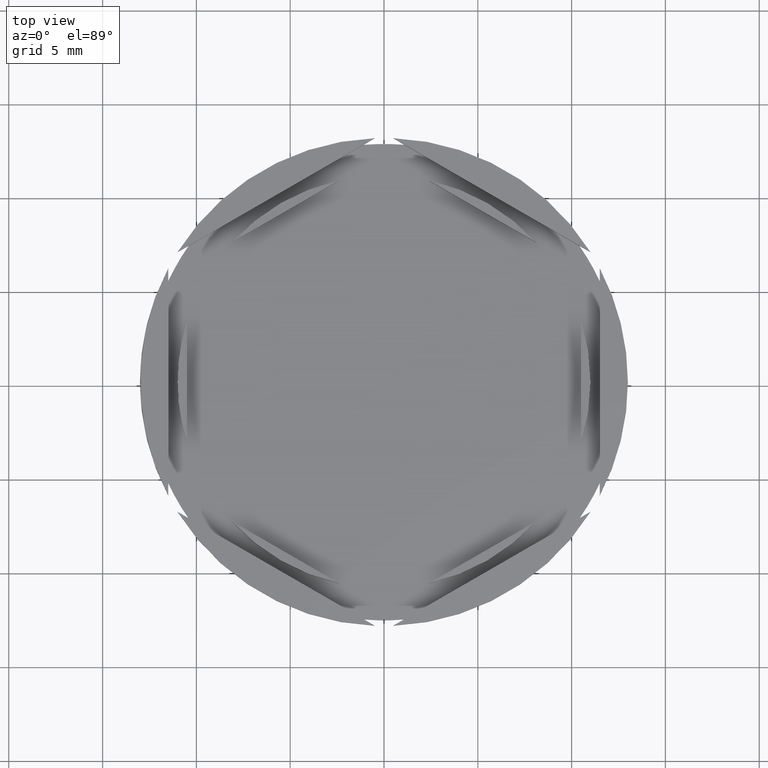
[diagram: clean part render]
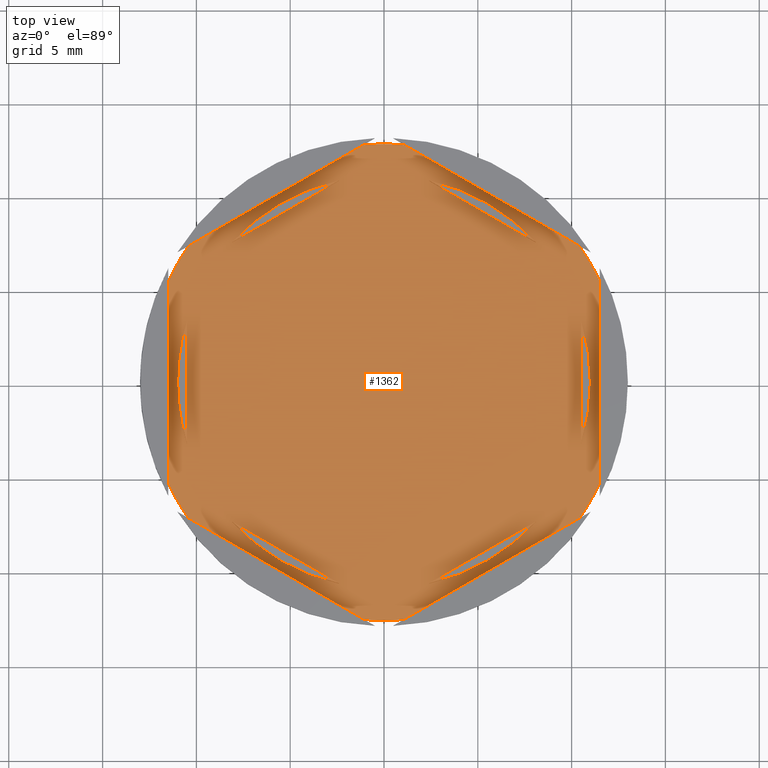
[diagram: same view with one face highlighted and labeled with its STEP entity id]
A machine part, top view. The second image highlights one B-rep face of the part: STEP entity #1362.
In plain terms, the highlighted planar face has unit normal (0, 0, 1).
Its self-contained STEP definition (entity closure, byte-faithful):
#19 = EDGE_CURVE ( 'NONE', #1156, #1622, #1935, .T. ) ;
#30 = ORIENTED_EDGE ( 'NONE', *, *, #118, .F. ) ;
#31 = AXIS2_PLACEMENT_3D ( 'NONE', #826, #1774, #1933 ) ;
#47 = EDGE_LOOP ( 'NONE', ( #1280, #127 ) ) ;
#57 = CARTESIAN_POINT ( 'NONE',  ( -10.49999999999999467, -6.062177826491068622, -1.000000000000000888 ) ) ;
#64 = VERTEX_POINT ( 'NONE', #1166 ) ;
#76 = VERTEX_POINT ( 'NONE', #131 ) ;
#80 = VECTOR ( 'NONE', #261, 1000.000000000000000 ) ;
#92 = DIRECTION ( 'NONE',  ( 0.8660254037844387076, 0.4999999999999998890, 0.000000000000000000 ) ) ;
#97 = DIRECTION ( 'NONE',  ( -0.000000000000000000, -0.000000000000000000, -1.000000000000000000 ) ) ;
#101 = LINE ( 'NONE', #1942, #187 ) ;
#107 = DIRECTION ( 'NONE',  ( 0.000000000000000000, 1.000000000000000000, 0.000000000000000000 ) ) ;
#117 = CIRCLE ( 'NONE', #812, 10.99999999999999822 ) ;
#118 = EDGE_CURVE ( 'NONE', #1090, #2130, #2329, .T. ) ;
#121 = CARTESIAN_POINT ( 'NONE',  ( -10.41690475583121156, 7.264853426459544572, -1.000000000000000000 ) ) ;
#127 = ORIENTED_EDGE ( 'NONE', *, *, #1753, .F. ) ;
#131 = CARTESIAN_POINT ( 'NONE',  ( -11.50000000000000000, 5.388877434122982812, -1.000000000000000000 ) ) ;
#143 = DIRECTION ( 'NONE',  ( -0.8660254037844387076, -0.4999999999999998890, 0.000000000000000000 ) ) ;
#151 = VECTOR ( 'NONE', #1873, 1000.000000000000227 ) ;
#152 = CARTESIAN_POINT ( 'NONE',  ( -10.99999999999999822, 0.000000000000000000, -1.000000000000000000 ) ) ;
#158 = ORIENTED_EDGE ( 'NONE', *, *, #1036, .F. ) ;
#167 = CARTESIAN_POINT ( 'NONE',  ( -10.41690475583120445, -7.264853426459555230, -1.000000000000000000 ) ) ;
#170 = EDGE_CURVE ( 'NONE', #623, #371, #1371, .T. ) ;
#177 = VECTOR ( 'NONE', #712, 1000.000000000000000 ) ;
#187 = VECTOR ( 'NONE', #1934, 1000.000000000000000 ) ;
#200 = DIRECTION ( 'NONE',  ( 0.8660254037844387076, -0.4999999999999998335, 0.000000000000000000 ) ) ;
#231 = EDGE_CURVE ( 'NONE', #338, #456, #1319, .T. ) ;
#256 = DIRECTION ( 'NONE',  ( 0.000000000000000000, 0.000000000000000000, 1.000000000000000000 ) ) ;
#257 = ORIENTED_EDGE ( 'NONE', *, *, #1352, .F. ) ;
#261 = DIRECTION ( 'NONE',  ( -2.861551616642209839E-16, -1.000000000000000000, 0.000000000000000000 ) ) ;
#266 = VECTOR ( 'NONE', #107, 1000.000000000000000 ) ;
#270 = CARTESIAN_POINT ( 'NONE',  ( 0.000000000000000000, 0.000000000000000000, -1.000000000000000000 ) ) ;
#272 = AXIS2_PLACEMENT_3D ( 'NONE', #270, #1761, #1551 ) ;
#298 = FACE_BOUND ( 'NONE', #47, .T. ) ;
#304 = DIRECTION ( 'NONE',  ( 1.000000000000000000, 0.000000000000000000, 0.000000000000000000 ) ) ;
#328 = EDGE_LOOP ( 'NONE', ( #30, #906 ) ) ;
#333 = AXIS2_PLACEMENT_3D ( 'NONE', #340, #1607, #1426 ) ;
#336 = EDGE_CURVE ( 'NONE', #371, #1653, #1083, .T. ) ;
#338 = VERTEX_POINT ( 'NONE', #2187 ) ;
#340 = CARTESIAN_POINT ( 'NONE',  ( 0.000000000000000000, 0.000000000000000000, -1.000000000000000000 ) ) ;
#342 = ORIENTED_EDGE ( 'NONE', *, *, #837, .F. ) ;
#371 = VERTEX_POINT ( 'NONE', #2028 ) ;
#373 = AXIS2_PLACEMENT_3D ( 'NONE', #791, #97, #992 ) ;
#382 = CARTESIAN_POINT ( 'NONE',  ( -1.734723475976807094E-15, 12.12435565298213369, -1.000000000000000888 ) ) ;
#385 = ORIENTED_EDGE ( 'NONE', *, *, #1789, .F. ) ;
#393 = DIRECTION ( 'NONE',  ( -0.000000000000000000, -0.000000000000000000, -1.000000000000000000 ) ) ;
#406 = VECTOR ( 'NONE', #918, 999.9999999999998863 ) ;
#429 = CARTESIAN_POINT ( 'NONE',  ( 0.000000000000000000, 0.000000000000000000, -1.000000000000000000 ) ) ;
#435 = CARTESIAN_POINT ( 'NONE',  ( 0.000000000000000000, 0.000000000000000000, -1.000000000000000000 ) ) ;
#447 = EDGE_LOOP ( 'NONE', ( #971, #1307 ) ) ;
#450 = EDGE_CURVE ( 'NONE', #596, #1859, #2215, .T. ) ;
#453 = DIRECTION ( 'NONE',  ( 1.000000000000000000, 0.000000000000000000, -0.000000000000000000 ) ) ;
#456 = VERTEX_POINT ( 'NONE', #1716 ) ;
#473 = VERTEX_POINT ( 'NONE', #121 ) ;
#475 = DIRECTION ( 'NONE',  ( 0.000000000000000000, 0.000000000000000000, 1.000000000000000000 ) ) ;
#485 = AXIS2_PLACEMENT_3D ( 'NONE', #1865, #393, #2224 ) ;
#492 = AXIS2_PLACEMENT_3D ( 'NONE', #2089, #1515, #1381 ) ;
#532 = CARTESIAN_POINT ( 'NONE',  ( 8.089454172900142126, 7.453907108661096181, -1.000000000000000888 ) ) ;
#576 = ORIENTED_EDGE ( 'NONE', *, *, #978, .T. ) ;
#596 = VERTEX_POINT ( 'NONE', #1999 ) ;
#599 = ORIENTED_EDGE ( 'NONE', *, *, #2184, .F. ) ;
#608 = VERTEX_POINT ( 'NONE', #1809 ) ;
#610 = DIRECTION ( 'NONE',  ( -0.000000000000000000, -0.000000000000000000, -1.000000000000000000 ) ) ;
#623 = VERTEX_POINT ( 'NONE', #152 ) ;
#634 = PLANE ( 'NONE',  #1451 ) ;
#646 = CARTESIAN_POINT ( 'NONE',  ( 0.000000000000000000, 0.000000000000000000, -1.000000000000000000 ) ) ;
#652 = CARTESIAN_POINT ( 'NONE',  ( 2.410545827099848548, 10.73262637081210613, -1.000000000000000888 ) ) ;
#686 = CIRCLE ( 'NONE', #492, 12.69999999999999574 ) ;
#693 = ORIENTED_EDGE ( 'NONE', *, *, #1702, .T. ) ;
#712 = DIRECTION ( 'NONE',  ( 0.000000000000000000, 1.000000000000000000, 0.000000000000000000 ) ) ;
#735 = VERTEX_POINT ( 'NONE', #1625 ) ;
#765 = DIRECTION ( 'NONE',  ( 0.000000000000000000, 0.000000000000000000, 1.000000000000000000 ) ) ;
#780 = CARTESIAN_POINT ( 'NONE',  ( 11.50000000000000000, -5.388877434122982812, -1.000000000000000000 ) ) ;
#791 = CARTESIAN_POINT ( 'NONE',  ( 0.000000000000000000, 0.000000000000000000, -1.000000000000000000 ) ) ;
#795 = ORIENTED_EDGE ( 'NONE', *, *, #1511, .T. ) ;
#812 = AXIS2_PLACEMENT_3D ( 'NONE', #435, #256, #1896 ) ;
#820 = CARTESIAN_POINT ( 'NONE',  ( 10.49999999999999645, 3.278719262151004177, -1.000000000000000888 ) ) ;
#822 = CARTESIAN_POINT ( 'NONE',  ( 11.50000000000000000, -6.639528095680694797, -1.000000000000000000 ) ) ;
#826 = CARTESIAN_POINT ( 'NONE',  ( 0.000000000000000000, 0.000000000000000000, -1.000000000000000000 ) ) ;
#837 = EDGE_CURVE ( 'NONE', #1156, #1759, #2303, .T. ) ;
#845 = DIRECTION ( 'NONE',  ( 1.000000000000000000, 0.000000000000000000, 0.000000000000000000 ) ) ;
#846 = CIRCLE ( 'NONE', #1766, 12.69999999999999574 ) ;
#879 = CIRCLE ( 'NONE', #2180, 12.69999999999999574 ) ;
#896 = ORIENTED_EDGE ( 'NONE', *, *, #1056, .T. ) ;
#906 = ORIENTED_EDGE ( 'NONE', *, *, #2331, .F. ) ;
#917 = VECTOR ( 'NONE', #1686, 1000.000000000000000 ) ;
#918 = DIRECTION ( 'NONE',  ( -0.8660254037844385966, 0.5000000000000002220, 0.000000000000000000 ) ) ;
#920 = EDGE_CURVE ( 'NONE', #2293, #1113, #2036, .T. ) ;
#962 = ORIENTED_EDGE ( 'NONE', *, *, #2200, .F. ) ;
#971 = ORIENTED_EDGE ( 'NONE', *, *, #2347, .F. ) ;
#978 = EDGE_CURVE ( 'NONE', #76, #1759, #2116, .T. ) ;
#981 = CARTESIAN_POINT ( 'NONE',  ( 10.49999999999999289, -6.062177826491071286, -1.000000000000000888 ) ) ;
#992 = DIRECTION ( 'NONE',  ( 1.000000000000000000, -8.881784197001252323E-16, 0.000000000000000000 ) ) ;
#996 = EDGE_CURVE ( 'NONE', #1079, #1622, #879, .T. ) ;
#1002 = CARTESIAN_POINT ( 'NONE',  ( -11.50000000000000000, -5.388877434122982812, -1.000000000000000000 ) ) ;
#1005 = CARTESIAN_POINT ( 'NONE',  ( -1.083095244168782445, 12.65373086058253627, -1.000000000000000000 ) ) ;
#1016 = ORIENTED_EDGE ( 'NONE', *, *, #1621, .F. ) ;
#1023 = VECTOR ( 'NONE', #200, 1000.000000000000000 ) ;
#1031 = EDGE_LOOP ( 'NONE', ( #962, #2127, #1582 ) ) ;
#1036 = EDGE_CURVE ( 'NONE', #1710, #1492, #2217, .T. ) ;
#1056 = EDGE_CURVE ( 'NONE', #1079, #1492, #1542, .T. ) ;
#1079 = VERTEX_POINT ( 'NONE', #1636 ) ;
#1083 = LINE ( 'NONE', #2361, #177 ) ;
#1090 = VERTEX_POINT ( 'NONE', #2334 ) ;
#1106 = CARTESIAN_POINT ( 'NONE',  ( 11.50000000000000000, 6.639528095680693021, -1.000000000000000000 ) ) ;
#1113 = VERTEX_POINT ( 'NONE', #532 ) ;
#1133 = AXIS2_PLACEMENT_3D ( 'NONE', #1455, #2208, #1472 ) ;
#1155 = DIRECTION ( 'NONE',  ( 0.8660254037844388186, -0.4999999999999997224, 0.000000000000000000 ) ) ;
#1156 = VERTEX_POINT ( 'NONE', #167 ) ;
#1160 = DIRECTION ( 'NONE',  ( 0.000000000000000000, 0.000000000000000000, 1.000000000000000000 ) ) ;
#1162 = EDGE_LOOP ( 'NONE', ( #1510, #599 ) ) ;
#1164 = CARTESIAN_POINT ( 'NONE',  ( -3.394223061414856671E-17, -13.27905619136138959, -1.000000000000000000 ) ) ;
#1165 = CARTESIAN_POINT ( 'NONE',  ( 8.089454172900138573, -7.453907108661099734, -1.000000000000000888 ) ) ;
#1166 = CARTESIAN_POINT ( 'NONE',  ( -8.089454172900142126, 7.453907108661097070, -1.000000000000000888 ) ) ;
#1173 = FACE_BOUND ( 'NONE', #447, .T. ) ;
#1186 = FACE_BOUND ( 'NONE', #328, .T. ) ;
#1209 = DIRECTION ( 'NONE',  ( 0.000000000000000000, -1.000000000000000000, 0.000000000000000000 ) ) ;
#1248 = CARTESIAN_POINT ( 'NONE',  ( 0.000000000000000000, 13.27905619136138604, -1.000000000000000000 ) ) ;
#1280 = ORIENTED_EDGE ( 'NONE', *, *, #450, .F. ) ;
#1284 = AXIS2_PLACEMENT_3D ( 'NONE', #1439, #2176, #1998 ) ;
#1294 = VERTEX_POINT ( 'NONE', #2198 ) ;
#1295 = VECTOR ( 'NONE', #143, 1000.000000000000000 ) ;
#1307 = ORIENTED_EDGE ( 'NONE', *, *, #231, .F. ) ;
#1312 = CARTESIAN_POINT ( 'NONE',  ( 0.000000000000000000, 0.000000000000000000, -1.000000000000000000 ) ) ;
#1319 = LINE ( 'NONE', #57, #406 ) ;
#1323 = CARTESIAN_POINT ( 'NONE',  ( -10.49999999999999467, 3.278719262151007285, -1.000000000000000888 ) ) ;
#1352 = EDGE_CURVE ( 'NONE', #76, #473, #846, .T. ) ;
#1362 = ADVANCED_FACE ( 'NONE', ( #1548, #298, #1186, #1173, #1939, #1906, #1392 ), #634, .T. ) ;
#1371 = CIRCLE ( 'NONE', #1133, 10.99999999999999822 ) ;
#1372 = CARTESIAN_POINT ( 'NONE',  ( -11.50000000000000000, -6.639528095680698350, -1.000000000000000000 ) ) ;
#1381 = DIRECTION ( 'NONE',  ( 1.000000000000000000, 6.217248937900877415E-15, 0.000000000000000000 ) ) ;
#1387 = CIRCLE ( 'NONE', #272, 10.99999999999999822 ) ;
#1389 = CARTESIAN_POINT ( 'NONE',  ( 1.083095244168780669, 12.65373086058253449, -1.000000000000000000 ) ) ;
#1392 = FACE_OUTER_BOUND ( 'NONE', #1845, .T. ) ;
#1426 = DIRECTION ( 'NONE',  ( 1.000000000000000000, 0.000000000000000000, 0.000000000000000000 ) ) ;
#1434 = VERTEX_POINT ( 'NONE', #1005 ) ;
#1439 = CARTESIAN_POINT ( 'NONE',  ( 0.000000000000000000, 0.000000000000000000, -1.000000000000000000 ) ) ;
#1440 = EDGE_CURVE ( 'NONE', #1710, #735, #1748, .T. ) ;
#1451 = AXIS2_PLACEMENT_3D ( 'NONE', #2300, #475, #453 ) ;
#1455 = CARTESIAN_POINT ( 'NONE',  ( 0.000000000000000000, 0.000000000000000000, -1.000000000000000000 ) ) ;
#1457 = AXIS2_PLACEMENT_3D ( 'NONE', #1312, #765, #2242 ) ;
#1460 = CARTESIAN_POINT ( 'NONE',  ( -1.083095244168789328, -12.65373086058253627, -1.000000000000000000 ) ) ;
#1472 = DIRECTION ( 'NONE',  ( 1.000000000000000000, 0.000000000000000000, 0.000000000000000000 ) ) ;
#1492 = VERTEX_POINT ( 'NONE', #1620 ) ;
#1510 = ORIENTED_EDGE ( 'NONE', *, *, #1522, .F. ) ;
#1511 = EDGE_CURVE ( 'NONE', #1434, #473, #1771, .T. ) ;
#1515 = DIRECTION ( 'NONE',  ( -0.000000000000000000, -0.000000000000000000, -1.000000000000000000 ) ) ;
#1522 = EDGE_CURVE ( 'NONE', #608, #64, #1802, .T. ) ;
#1542 = LINE ( 'NONE', #1164, #1682 ) ;
#1548 = FACE_BOUND ( 'NONE', #2254, .T. ) ;
#1550 = CARTESIAN_POINT ( 'NONE',  ( -11.50000000000000000, 6.639528095680691244, -1.000000000000000000 ) ) ;
#1551 = DIRECTION ( 'NONE',  ( 1.000000000000000000, 0.000000000000000000, 0.000000000000000000 ) ) ;
#1573 = CIRCLE ( 'NONE', #373, 12.69999999999999574 ) ;
#1582 = ORIENTED_EDGE ( 'NONE', *, *, #170, .F. ) ;
#1607 = DIRECTION ( 'NONE',  ( 0.000000000000000000, 0.000000000000000000, 1.000000000000000000 ) ) ;
#1620 = CARTESIAN_POINT ( 'NONE',  ( 10.41690475583120623, -7.264853426459551677, -1.000000000000000000 ) ) ;
#1621 = EDGE_CURVE ( 'NONE', #1113, #2293, #2264, .T. ) ;
#1622 = VERTEX_POINT ( 'NONE', #1460 ) ;
#1625 = CARTESIAN_POINT ( 'NONE',  ( 11.50000000000000000, 5.388877434122982812, -1.000000000000000000 ) ) ;
#1636 = CARTESIAN_POINT ( 'NONE',  ( 1.083095244168790217, -12.65373086058253627, -1.000000000000000000 ) ) ;
#1637 = ORIENTED_EDGE ( 'NONE', *, *, #1440, .T. ) ;
#1638 = VECTOR ( 'NONE', #1155, 1000.000000000000000 ) ;
#1653 = VERTEX_POINT ( 'NONE', #1323 ) ;
#1682 = VECTOR ( 'NONE', #92, 1000.000000000000000 ) ;
#1686 = DIRECTION ( 'NONE',  ( 0.8660254037844385966, 0.5000000000000001110, -0.000000000000000000 ) ) ;
#1702 = EDGE_CURVE ( 'NONE', #1294, #2318, #2045, .T. ) ;
#1710 = VERTEX_POINT ( 'NONE', #780 ) ;
#1716 = CARTESIAN_POINT ( 'NONE',  ( -8.089454172900135021, -7.453907108661107728, -1.000000000000000888 ) ) ;
#1748 = LINE ( 'NONE', #822, #266 ) ;
#1753 = EDGE_CURVE ( 'NONE', #1859, #596, #2110, .T. ) ;
#1759 = VERTEX_POINT ( 'NONE', #1002 ) ;
#1761 = DIRECTION ( 'NONE',  ( 0.000000000000000000, 0.000000000000000000, 1.000000000000000000 ) ) ;
#1766 = AXIS2_PLACEMENT_3D ( 'NONE', #646, #610, #845 ) ;
#1771 = LINE ( 'NONE', #1248, #1295 ) ;
#1774 = DIRECTION ( 'NONE',  ( -0.000000000000000000, -0.000000000000000000, -1.000000000000000000 ) ) ;
#1789 = EDGE_CURVE ( 'NONE', #1294, #735, #1573, .T. ) ;
#1802 = CIRCLE ( 'NONE', #333, 10.99999999999999822 ) ;
#1809 = CARTESIAN_POINT ( 'NONE',  ( -2.410545827099856098, 10.73262637081210613, -1.000000000000000888 ) ) ;
#1829 = AXIS2_PLACEMENT_3D ( 'NONE', #429, #1160, #1902 ) ;
#1845 = EDGE_LOOP ( 'NONE', ( #1637, #385, #693, #2025, #795, #257, #576, #342, #2341, #1846, #896, #158 ) ) ;
#1846 = ORIENTED_EDGE ( 'NONE', *, *, #996, .F. ) ;
#1855 = CARTESIAN_POINT ( 'NONE',  ( 10.49999999999999645, 6.062177826491066845, -1.000000000000000888 ) ) ;
#1859 = VERTEX_POINT ( 'NONE', #820 ) ;
#1865 = CARTESIAN_POINT ( 'NONE',  ( 0.000000000000000000, 0.000000000000000000, -1.000000000000000000 ) ) ;
#1873 = DIRECTION ( 'NONE',  ( -0.8660254037844387076, 0.4999999999999997780, 0.000000000000000000 ) ) ;
#1879 = EDGE_CURVE ( 'NONE', #1434, #2318, #686, .T. ) ;
#1896 = DIRECTION ( 'NONE',  ( 1.000000000000000000, 0.000000000000000000, 0.000000000000000000 ) ) ;
#1902 = DIRECTION ( 'NONE',  ( 1.000000000000000000, 0.000000000000000000, 0.000000000000000000 ) ) ;
#1906 = FACE_BOUND ( 'NONE', #1162, .T. ) ;
#1919 = VECTOR ( 'NONE', #1209, 1000.000000000000000 ) ;
#1933 = DIRECTION ( 'NONE',  ( 1.000000000000000000, 0.000000000000000000, 0.000000000000000000 ) ) ;
#1934 = DIRECTION ( 'NONE',  ( -0.8660254037844387076, -0.4999999999999998335, 0.000000000000000000 ) ) ;
#1935 = LINE ( 'NONE', #1372, #1638 ) ;
#1937 = ORIENTED_EDGE ( 'NONE', *, *, #920, .F. ) ;
#1939 = FACE_BOUND ( 'NONE', #1031, .T. ) ;
#1942 = CARTESIAN_POINT ( 'NONE',  ( -3.469446951953614189E-15, -12.12435565298213724, -1.000000000000000888 ) ) ;
#1998 = DIRECTION ( 'NONE',  ( 1.000000000000000000, 0.000000000000000000, 0.000000000000000000 ) ) ;
#1999 = CARTESIAN_POINT ( 'NONE',  ( 10.49999999999999289, -3.278719262151010394, -1.000000000000000888 ) ) ;
#2025 = ORIENTED_EDGE ( 'NONE', *, *, #1879, .F. ) ;
#2028 = CARTESIAN_POINT ( 'NONE',  ( -10.49999999999999467, -3.278719262151007285, -1.000000000000000888 ) ) ;
#2036 = LINE ( 'NONE', #1855, #1023 ) ;
#2045 = LINE ( 'NONE', #1106, #151 ) ;
#2089 = CARTESIAN_POINT ( 'NONE',  ( 0.000000000000000000, 0.000000000000000000, -1.000000000000000000 ) ) ;
#2103 = CARTESIAN_POINT ( 'NONE',  ( 0.000000000000000000, 0.000000000000000000, -1.000000000000000000 ) ) ;
#2110 = LINE ( 'NONE', #981, #80 ) ;
#2116 = LINE ( 'NONE', #1550, #1919 ) ;
#2127 = ORIENTED_EDGE ( 'NONE', *, *, #336, .F. ) ;
#2130 = VERTEX_POINT ( 'NONE', #1165 ) ;
#2176 = DIRECTION ( 'NONE',  ( 0.000000000000000000, 0.000000000000000000, 1.000000000000000000 ) ) ;
#2180 = AXIS2_PLACEMENT_3D ( 'NONE', #2103, #2316, #304 ) ;
#2184 = EDGE_CURVE ( 'NONE', #64, #608, #2225, .T. ) ;
#2187 = CARTESIAN_POINT ( 'NONE',  ( -2.410545827099869864, -10.73262637081210435, -1.000000000000000888 ) ) ;
#2198 = CARTESIAN_POINT ( 'NONE',  ( 10.41690475583120801, 7.264853426459545460, -1.000000000000000000 ) ) ;
#2200 = EDGE_CURVE ( 'NONE', #1653, #623, #117, .T. ) ;
#2208 = DIRECTION ( 'NONE',  ( 0.000000000000000000, 0.000000000000000000, 1.000000000000000000 ) ) ;
#2215 = CIRCLE ( 'NONE', #1829, 10.99999999999999822 ) ;
#2217 = CIRCLE ( 'NONE', #31, 12.69999999999999574 ) ;
#2224 = DIRECTION ( 'NONE',  ( 1.000000000000000000, -7.105427357601001859E-15, 0.000000000000000000 ) ) ;
#2225 = LINE ( 'NONE', #382, #917 ) ;
#2242 = DIRECTION ( 'NONE',  ( 1.000000000000000000, 0.000000000000000000, 0.000000000000000000 ) ) ;
#2254 = EDGE_LOOP ( 'NONE', ( #1016, #1937 ) ) ;
#2264 = CIRCLE ( 'NONE', #1457, 10.99999999999999822 ) ;
#2293 = VERTEX_POINT ( 'NONE', #652 ) ;
#2300 = CARTESIAN_POINT ( 'NONE',  ( 0.000000000000000000, 0.000000000000000000, -1.000000000000000000 ) ) ;
#2303 = CIRCLE ( 'NONE', #485, 12.69999999999999574 ) ;
#2316 = DIRECTION ( 'NONE',  ( -0.000000000000000000, -0.000000000000000000, -1.000000000000000000 ) ) ;
#2318 = VERTEX_POINT ( 'NONE', #1389 ) ;
#2329 = CIRCLE ( 'NONE', #1284, 10.99999999999999822 ) ;
#2331 = EDGE_CURVE ( 'NONE', #2130, #1090, #101, .T. ) ;
#2334 = CARTESIAN_POINT ( 'NONE',  ( 2.410545827099852989, -10.73262637081210613, -1.000000000000000888 ) ) ;
#2341 = ORIENTED_EDGE ( 'NONE', *, *, #19, .T. ) ;
#2347 = EDGE_CURVE ( 'NONE', #456, #338, #1387, .T. ) ;
#2361 = CARTESIAN_POINT ( 'NONE',  ( -10.49999999999999467, 6.062177826491065069, -1.000000000000000888 ) ) ;